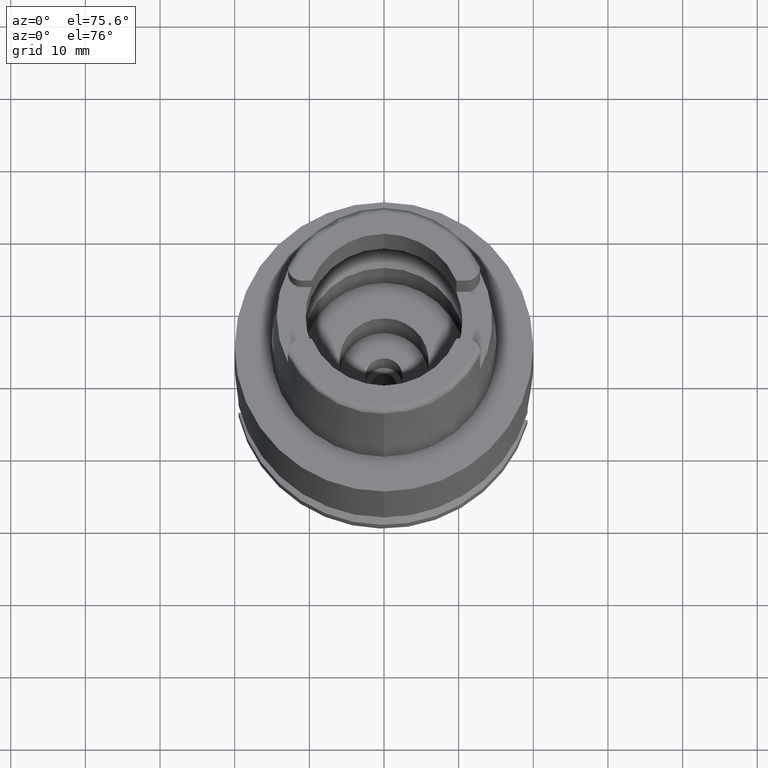
[diagram: clean part render]
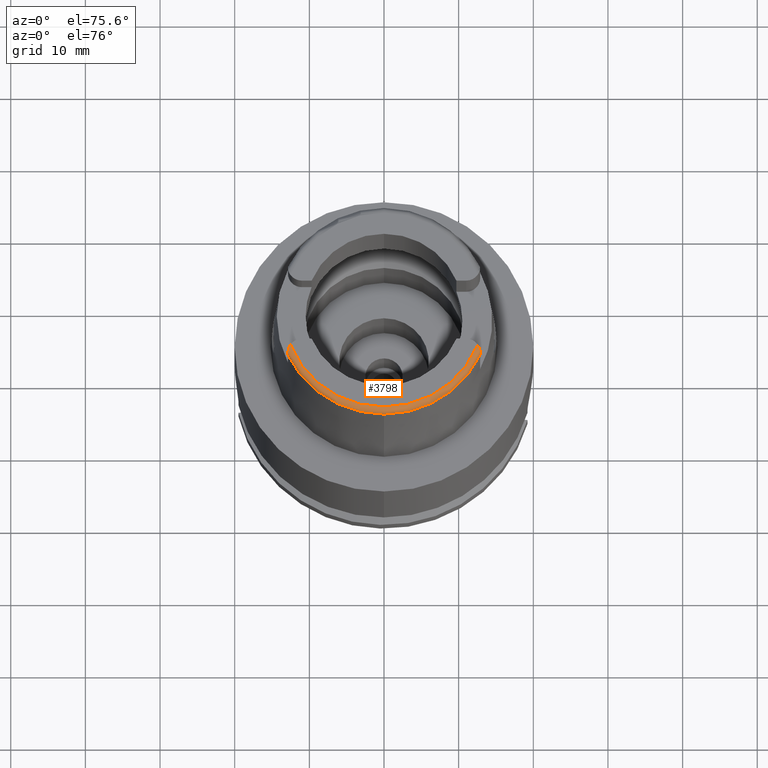
[diagram: same view with one face highlighted and labeled with its STEP entity id]
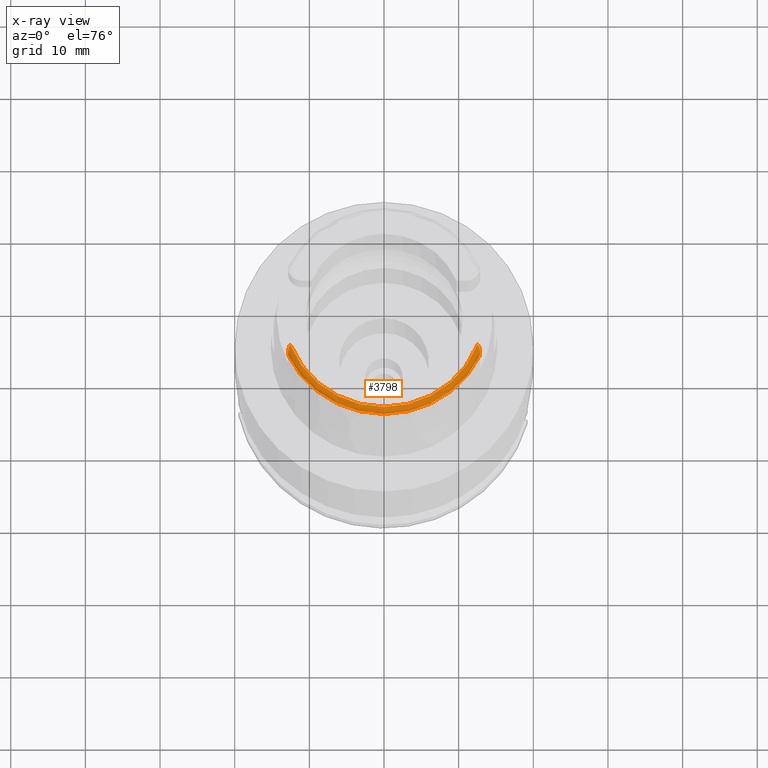
[diagram: x-ray of the same camera — body ghosted, the highlighted face saturated]
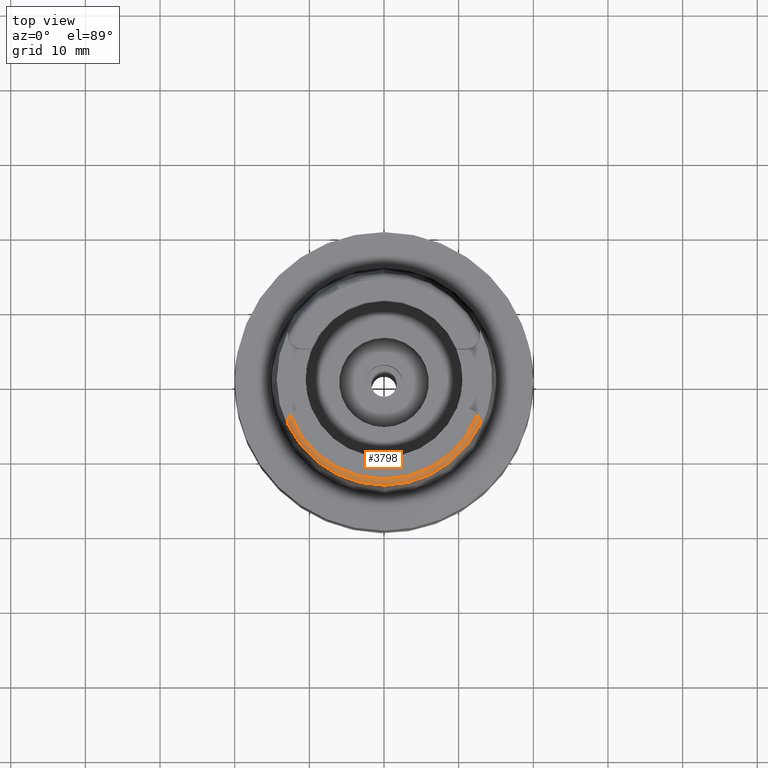
[diagram: same view with one face highlighted and labeled with its STEP entity id]
A machine part, auxiliary view. The second image highlights one B-rep face of the part: STEP entity #3798.
The next image is the same camera in x-ray: the body ghosted, the highlighted face saturated — about 0% of this face is hidden behind the body in this view.
A second angle (top view) of the same face is appended — the face is thin or edge-on in the first view.
In plain terms, the highlighted toroidal blend (fillet) surface has major radius 13.439 mm and minor (blend) radius 0.8 mm.
Its self-contained STEP definition (entity closure, byte-faithful):
#132 = CARTESIAN_POINT ( 'NONE',  ( -12.84902659165827288, -5.561248558987649915, 19.77099941142651574 ) ) ;
#138 = TOROIDAL_SURFACE ( 'NONE', #561, 13.43897535253999997, 0.8000000000000000444 ) ;
#250 = CARTESIAN_POINT ( 'NONE',  ( 12.78289898748321995, -5.306195522628474492, 19.89319856801468234 ) ) ;
#293 = CARTESIAN_POINT ( 'NONE',  ( -12.87999878070000115, -6.065742852942999974, 19.26273048507000141 ) ) ;
#453 = EDGE_CURVE ( 'NONE', #5217, #1753, #1998, .T. ) ;
#550 = EDGE_CURVE ( 'NONE', #5217, #2181, #1527, .T. ) ;
#561 = AXIS2_PLACEMENT_3D ( 'NONE', #958, #2583, #1795 ) ;
#775 = CARTESIAN_POINT ( 'NONE',  ( 12.88000026739000070, -6.024669454934000079, 19.38121613292999967 ) ) ;
#958 = CARTESIAN_POINT ( 'NONE',  ( 0.0000000000000000000, 0.0000000000000000000, 19.19999999999999929 ) ) ;
#1060 = CARTESIAN_POINT ( 'NONE',  ( 12.84902013259173970, -5.561212717302998598, 19.77101834141597436 ) ) ;
#1091 = EDGE_LOOP ( 'NONE', ( #1615, #2460, #1377, #4119, #4150, #1496, #1346 ) ) ;
#1346 = ORIENTED_EDGE ( 'NONE', *, *, #2254, .F. ) ;
#1375 = CARTESIAN_POINT ( 'NONE',  ( 12.88000213910999925, -6.068393227479000451, 19.24000449184000061 ) ) ;
#1377 = ORIENTED_EDGE ( 'NONE', *, *, #2263, .F. ) ;
#1408 = CARTESIAN_POINT ( 'NONE',  ( 12.54148453352999937, -4.828791175990000184, 20.00000000000000000 ) ) ;
#1496 = ORIENTED_EDGE ( 'NONE', *, *, #4706, .F. ) ;
#1506 = CARTESIAN_POINT ( 'NONE',  ( 12.64383147405449037, -4.987447143167900165, 19.98924207821015031 ) ) ;
#1527 = CIRCLE ( 'NONE', #2870, 13.43897535253999465 ) ;
#1601 = CARTESIAN_POINT ( 'NONE',  ( -12.88000000000000078, -5.904999999999999361, 19.52698079989999869 ) ) ;
#1615 = ORIENTED_EDGE ( 'NONE', *, *, #2025, .F. ) ;
#1753 = VERTEX_POINT ( 'NONE', #4721 ) ;
#1795 = DIRECTION ( 'NONE',  ( -0.001046041333563015692, -0.9999994528986146936, 0.0000000000000000000 ) ) ;
#1816 = CARTESIAN_POINT ( 'NONE',  ( 12.87648561184625784, -5.755270135109880059, 19.65150044674399510 ) ) ;
#1826 = CARTESIAN_POINT ( 'NONE',  ( -12.87041211298238252, -5.709042817862211905, 19.68060452536154159 ) ) ;
#1861 = CARTESIAN_POINT ( 'NONE',  ( 12.82736702797843975, -5.460258623994788785, 19.82417526370932492 ) ) ;
#1904 = DIRECTION ( 'NONE',  ( 0.9046233376276806570, -0.4262119390858908896, 0.0000000000000000000 ) ) ;
#1919 = DIRECTION ( 'NONE',  ( 0.0000000000000000000, 0.0000000000000000000, -1.000000000000000000 ) ) ;
#1936 = CARTESIAN_POINT ( 'NONE',  ( -12.88000004355000172, -5.975904832584999937, 19.45436063466000221 ) ) ;
#1998 = B_SPLINE_CURVE_WITH_KNOTS ( 'NONE', 3,
 ( #1408, #3439, #1506, #2621, #4660, #3092, #250, #2597, #1861, #1060, #3816, #1816, #5110, #3069 ),
 .UNSPECIFIED., .F., .F.,
 ( 4, 2, 2, 2, 2, 2, 4 ),
 ( 0.0000000000000000000, 0.2499999999999990008, 0.3749999999999985012, 0.4999999999999980016, 0.6249999999999975575, 0.7499999999999970024, 1.000000000000000000 ),
 .UNSPECIFIED. ) ;
#2025 = EDGE_CURVE ( 'NONE', #3700, #2234, #2890, .T. ) ;
#2124 = VERTEX_POINT ( 'NONE', #1375 ) ;
#2152 = DIRECTION ( 'NONE',  ( -0.001046041333563013523, -0.9999994528986144715, 0.0000000000000000000 ) ) ;
#2166 = CARTESIAN_POINT ( 'NONE',  ( 12.54148453352999937, -4.828791175990000184, 20.00000000000000000 ) ) ;
#2172 = CARTESIAN_POINT ( 'NONE',  ( -12.85753889539243211, -5.611078340834017908, 19.74229058100829448 ) ) ;
#2181 = VERTEX_POINT ( 'NONE', #2614 ) ;
#2234 = VERTEX_POINT ( 'NONE', #3609 ) ;
#2254 = EDGE_CURVE ( 'NONE', #2234, #4100, #4686, .T. ) ;
#2263 = EDGE_CURVE ( 'NONE', #1753, #2124, #3706, .T. ) ;
#2341 = CARTESIAN_POINT ( 'NONE',  ( -12.88000000000000078, -5.930844174782000877, 19.50293076755999877 ) ) ;
#2350 = CARTESIAN_POINT ( 'NONE',  ( -12.88000000000000078, -5.904999999999999361, 19.52698079989999869 ) ) ;
#2360 = CARTESIAN_POINT ( 'NONE',  ( -12.88000056611000055, -6.055757279815999539, 19.30903847677000229 ) ) ;
#2442 = CARTESIAN_POINT ( 'NONE',  ( 0.0000000000000000000, 0.0000000000000000000, 19.23995141520000018 ) ) ;
#2458 = AXIS2_PLACEMENT_3D ( 'NONE', #4701, #3875, #1904 ) ;
#2460 = ORIENTED_EDGE ( 'NONE', *, *, #5269, .F. ) ;
#2486 = CARTESIAN_POINT ( 'NONE',  ( -12.87909466796143931, -5.833730922170691890, 19.58961987703546725 ) ) ;
#2528 = B_SPLINE_CURVE_WITH_KNOTS ( 'NONE', 3,
 ( #2534, #4509, #2486, #4116, #1826, #2172, #132, #3426, #3800, #4167, #4647, #5015 ),
 .UNSPECIFIED., .F., .F.,
 ( 4, 2, 2, 2, 2, 4 ),
 ( 0.0000000000000000000, 0.1249999999999991118, 0.2499999999999982236, 0.3749999999999973355, 0.4999999999999964473, 1.000000000000000000 ),
 .UNSPECIFIED. ) ;
#2534 = CARTESIAN_POINT ( 'NONE',  ( -12.88000000000000078, -5.904999999999999361, 19.52698079989999869 ) ) ;
#2583 = DIRECTION ( 'NONE',  ( 0.0000000000000000000, 0.0000000000000000000, 1.000000000000000000 ) ) ;
#2597 = CARTESIAN_POINT ( 'NONE',  ( 12.81423087138245620, -5.409155319669836537, 19.84861130902906723 ) ) ;
#2614 = CARTESIAN_POINT ( 'NONE',  ( -12.54148453352999937, -4.828791175990000184, 20.00000000000000000 ) ) ;
#2621 = CARTESIAN_POINT ( 'NONE',  ( 12.70894360438981607, -5.119931183233999761, 19.95696831284062611 ) ) ;
#2767 = CARTESIAN_POINT ( 'NONE',  ( 12.87999900684000032, -6.055761861853000028, 19.30905921572000139 ) ) ;
#2870 = AXIS2_PLACEMENT_3D ( 'NONE', #3929, #1919, #3844 ) ;
#2890 = CIRCLE ( 'NONE', #4360, 14.23797715756000315 ) ;
#2972 = FACE_OUTER_BOUND ( 'NONE', #1091, .T. ) ;
#3069 = CARTESIAN_POINT ( 'NONE',  ( 12.88000000000000078, -5.904999999999999361, 19.52698079989999869 ) ) ;
#3092 = CARTESIAN_POINT ( 'NONE',  ( 12.76646588490986289, -5.259588810004632187, 19.91124714523378003 ) ) ;
#3143 = CARTESIAN_POINT ( 'NONE',  ( 12.87999992359999979, -5.975913483154999817, 19.45435182942999930 ) ) ;
#3164 = CARTESIAN_POINT ( 'NONE',  ( -12.87999984758999972, -6.024669098588000260, 19.38122578335000057 ) ) ;
#3426 = CARTESIAN_POINT ( 'NONE',  ( -12.82737890865326946, -5.460308293233762988, 19.82414867745265497 ) ) ;
#3439 = CARTESIAN_POINT ( 'NONE',  ( 12.59469937448464449, -4.905012307475802302, 19.99999999999999645 ) ) ;
#3590 = CARTESIAN_POINT ( 'NONE',  ( 12.88000213910999925, -6.068393227479000451, 19.24000449184000061 ) ) ;
#3609 = CARTESIAN_POINT ( 'NONE',  ( -12.87999878070000115, -6.068418779154000298, 19.23992095636999622 ) ) ;
#3700 = VERTEX_POINT ( 'NONE', #4963 ) ;
#3706 = B_SPLINE_CURVE_WITH_KNOTS ( 'NONE', 3,
 ( #4811, #4004, #3143, #775, #2767, #4413, #3590 ),
 .UNSPECIFIED., .F., .F.,
 ( 4, 1, 1, 1, 4 ),
 ( 0.0000000000000000000, 0.2500000000000000000, 0.5000000000000000000, 0.7500000000000000000, 1.000000000000000000 ),
 .UNSPECIFIED. ) ;
#3798 = ADVANCED_FACE ( 'NONE', ( #2972 ), #138, .T. ) ;
#3800 = CARTESIAN_POINT ( 'NONE',  ( -12.81368889608948258, -5.407376490380858769, 19.84937790980722383 ) ) ;
#3816 = CARTESIAN_POINT ( 'NONE',  ( 12.85772460069442680, -5.612487386680126811, 19.74140103409072466 ) ) ;
#3844 = DIRECTION ( 'NONE',  ( 0.9332173178785413414, -0.3593124512337161347, 0.0000000000000000000 ) ) ;
#3875 = DIRECTION ( 'NONE',  ( 0.0000000000000000000, 0.0000000000000000000, -1.000000000000000000 ) ) ;
#3929 = CARTESIAN_POINT ( 'NONE',  ( 0.0000000000000000000, 0.0000000000000000000, 20.00000000000000000 ) ) ;
#4004 = CARTESIAN_POINT ( 'NONE',  ( 12.88000000000000078, -5.930848352507999799, 19.50292687986000217 ) ) ;
#4064 = DIRECTION ( 'NONE',  ( 0.0000000000000000000, 0.0000000000000000000, -1.000000000000000000 ) ) ;
#4100 = VERTEX_POINT ( 'NONE', #2350 ) ;
#4116 = CARTESIAN_POINT ( 'NONE',  ( -12.87421084076415845, -5.751997460877753099, 19.65110879479711414 ) ) ;
#4119 = ORIENTED_EDGE ( 'NONE', *, *, #453, .F. ) ;
#4150 = ORIENTED_EDGE ( 'NONE', *, *, #550, .T. ) ;
#4167 = CARTESIAN_POINT ( 'NONE',  ( -12.73810215384705025, -5.158979887150706212, 19.95696511708778331 ) ) ;
#4253 = CIRCLE ( 'NONE', #2458, 14.23797715756000315 ) ;
#4360 = AXIS2_PLACEMENT_3D ( 'NONE', #2442, #4064, #2152 ) ;
#4413 = CARTESIAN_POINT ( 'NONE',  ( 12.88000213910999925, -6.065732079914999630, 19.26268804772000109 ) ) ;
#4509 = CARTESIAN_POINT ( 'NONE',  ( -12.87999999999999723, -5.871138017164993173, 19.55849203169670858 ) ) ;
#4647 = CARTESIAN_POINT ( 'NONE',  ( -12.64793418048325258, -4.981262035467408644, 20.00000000000000355 ) ) ;
#4660 = CARTESIAN_POINT ( 'NONE',  ( 12.72921481249373699, -5.165558684563888114, 19.94352091060332199 ) ) ;
#4686 = B_SPLINE_CURVE_WITH_KNOTS ( 'NONE', 3,
 ( #4861, #293, #2360, #3164, #1936, #2341, #1601 ),
 .UNSPECIFIED., .F., .F.,
 ( 4, 1, 1, 1, 4 ),
 ( 0.0000000000000000000, 0.2500000000000000000, 0.5000000000000000000, 0.7500000000000000000, 1.000000000000000000 ),
 .UNSPECIFIED. ) ;
#4701 = CARTESIAN_POINT ( 'NONE',  ( 0.0000000000000000000, 0.0000000000000000000, 19.23995141520000018 ) ) ;
#4706 = EDGE_CURVE ( 'NONE', #4100, #2181, #2528, .T. ) ;
#4721 = CARTESIAN_POINT ( 'NONE',  ( 12.88000000000000078, -5.904999999999999361, 19.52698079989999869 ) ) ;
#4811 = CARTESIAN_POINT ( 'NONE',  ( 12.88000000000000078, -5.904999999999999361, 19.52698079989999869 ) ) ;
#4861 = CARTESIAN_POINT ( 'NONE',  ( -12.87999878070000115, -6.068418779154000298, 19.23992095636999622 ) ) ;
#4963 = CARTESIAN_POINT ( 'NONE',  ( 0.0000000000000000000, -14.23797715755999782, 19.23995141520000018 ) ) ;
#5015 = CARTESIAN_POINT ( 'NONE',  ( -12.54148453352999937, -4.828791175990000184, 20.00000000000000000 ) ) ;
#5110 = CARTESIAN_POINT ( 'NONE',  ( 12.87999999999999901, -5.837262358971163856, 19.59001598949672385 ) ) ;
#5217 = VERTEX_POINT ( 'NONE', #2166 ) ;
#5269 = EDGE_CURVE ( 'NONE', #2124, #3700, #4253, .T. ) ;